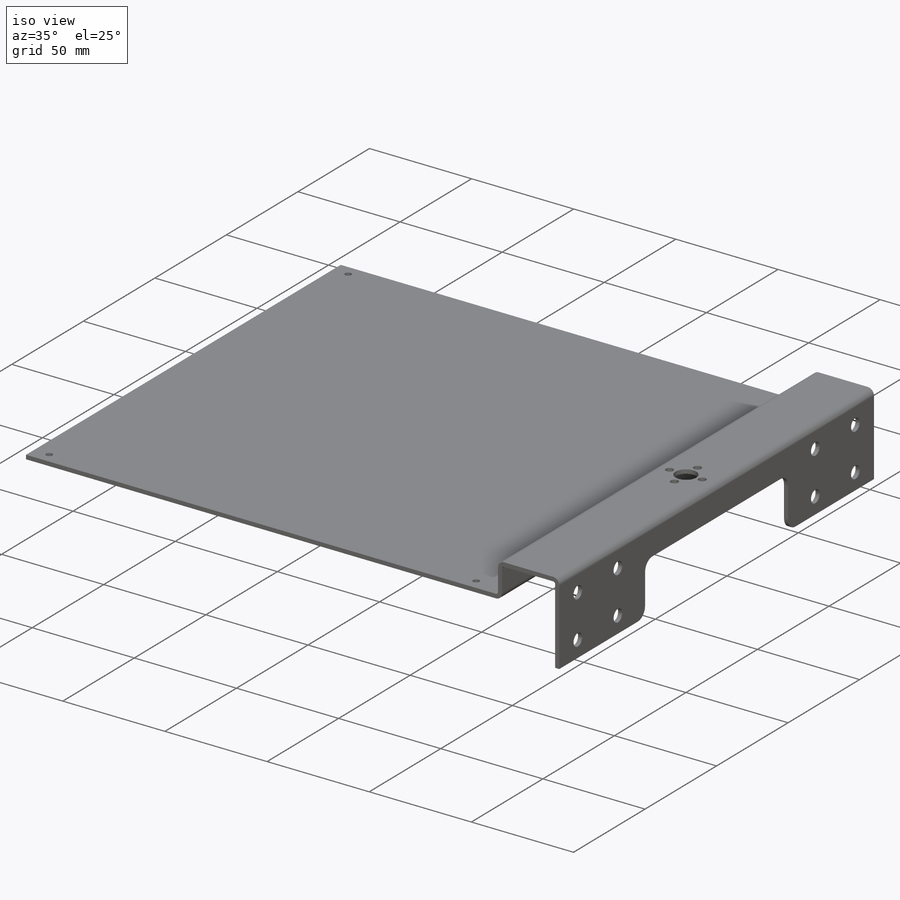
[diagram: iso view]
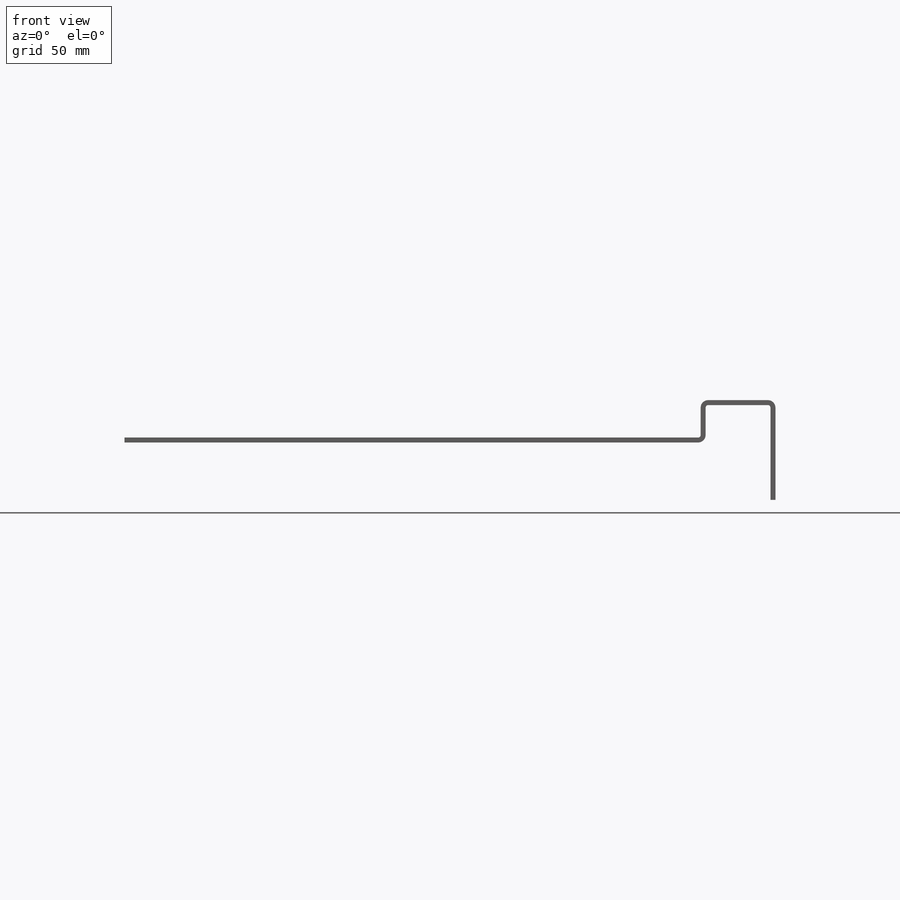
[diagram: front view]
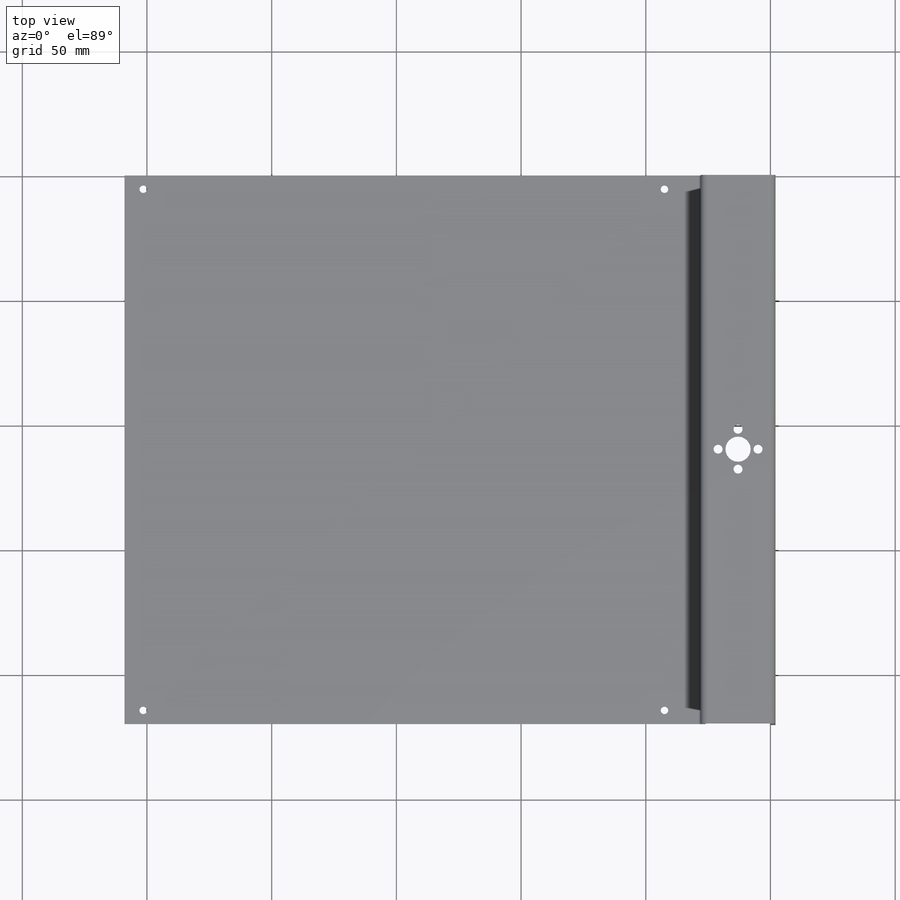
[diagram: top view]
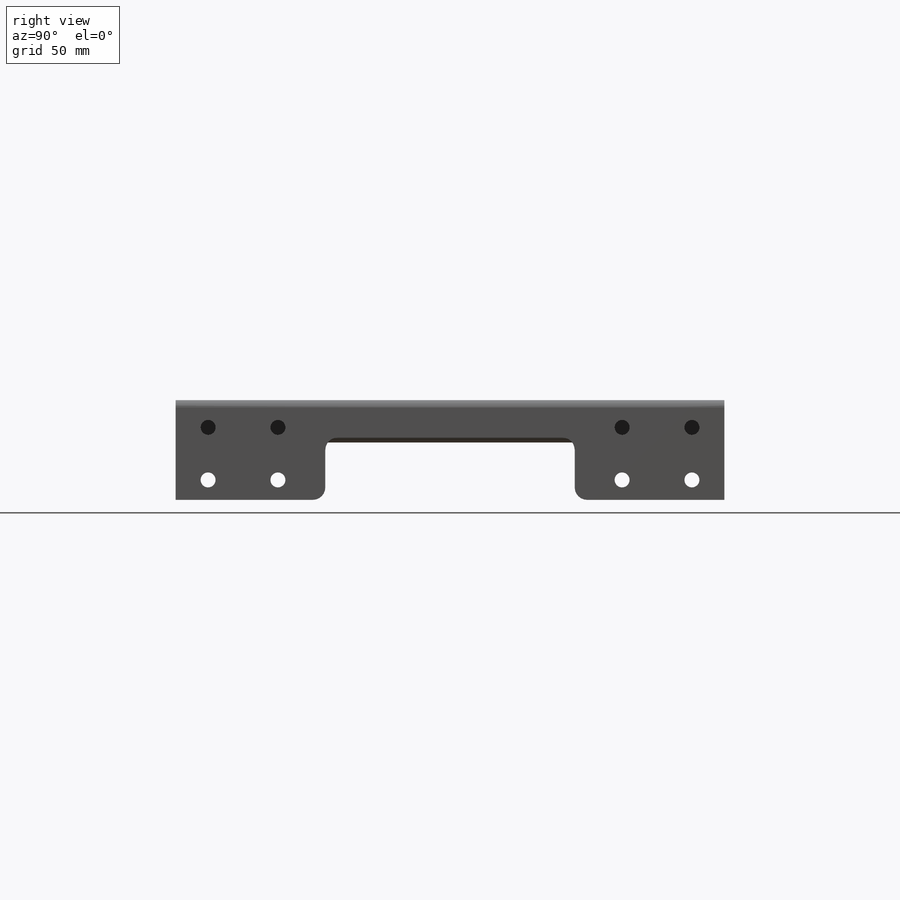
[diagram: right view]
SOLIDWORKS PART (.sldprt)
format: sldprt  version: not decoded by parser v0  size: 817,152 bytes
history: native  units: mm
features: sketch x20, sheet_metal_op x9, fillet x6, cut_extrude x5, plane x3, material x1 + 18 further entries (+9 scaffold rows collapsed; 6 parser-record rows omitted)
feature tree (77):
  scaffold x9  (default folders/planes/origin — collapsed)
  material  "1100-O Rod (SS)"
  plane  "Plan de face"
  plane  "Plan de dessus"
  plane  "Plan de droite"
  sketch  "Sketch1"  dims[c1.D1=233.0mm c1.D2=15.0mm c1.D3=26.0mm c1.D4=38.0mm c2.D1=1.0mm c2.D2=0.5 c2.D3=0.0mm c2.D6=500.0mm]
  sheet_metal_op  "Base-Flange1"
  sheet_metal_op  "BaseBend2"
  sheet_metal_op  "BaseBend3"
  sketch  "Sketch6"  dims[D1=3.6mm D3=3.6mm D2=8.0mm D4=8.0mm]
  cut_extrude  "Cut-Extrude1"  [1 undecoded]
  sketch  "Sketch7"  dims[D3=3.0mm D1=214.0mm D2=214.0mm D4=2.5mm D5=2.5mm D6=5.0mm]
  cut_extrude  "Cut-Extrude2"  [1 undecoded]
  sketch  "Sketch8"  dims[c1.D1=5.0mm c1.D2=6.0mm c1.D3=6.0mm c2.D1=21.0mm c2.D4=14.0mm c2.D5=8.0mm c2.D6=13.0mm]
  cut_extrude  "Cut-Extrude3"  [1 undecoded]
  sketch  "Sketch10"  dims[D1=50.0mm D2=25.0mm]
  cut_extrude  "Cut-Extrude8"  Depth=2mm
  fillet  "Fillet1"  Radius=5mm
  sketch  "Sketch11"  dims[D1=10.1mm]
  cut_extrude  "Cut-Extrude9"  [1 undecoded]
  sketch  "Bend-Lines1"
  sketch  "Bounding-Box1"
  sheet_metal_op  "Sheet-Metal(1)"
  "Flat-Pattern(1)"
  sketch  "Bend-Lines2"
  sketch  "Bounding-Box2"
  parser-record x6  (decoder bookkeeping rows leaked as tree rows — omitted from the tree; the rows remain in map.json)
  "Flatten-<BaseBend2>1"
  "Flatten-<BaseBend3>1"
  fillet  "Sheet-Metal(2)"  Radius=1mm
  sheet_metal_op  "Flat-Pattern(1)"
  sketch  "Bend-Lines2"
  sketch  "Bounding-Box2"
  "Flatten-<BaseBend1>1"
  "Flatten-<BaseBend2>1"
  "Flatten-<BaseBend3>1"
  fillet  "Sheet-Metal(3)"  Radius=1mm
  sheet_metal_op  "Flat-Pattern(1)"
  sketch  "Bend-Lines2"
  sketch  "Bounding-Box2"
  "Flatten-<BaseBend1>1"
  "Flatten-<BaseBend2>1"
  "Flatten-<BaseBend3>1"
  fillet  "Sheet-Metal(4)"  Radius=1mm
  sheet_metal_op  "Flat-Pattern(1)"
  sketch  "Bend-Lines2"
  sketch  "Bounding-Box2"
  "Flatten-<BaseBend1>1"
  "Flatten-<BaseBend2>1"
  "Flatten-<BaseBend3>1"
  fillet  "Sheet-Metal(5)"  Radius=1mm
  sheet_metal_op  "Flat-Pattern(1)"
  sketch  "Bend-Lines2"
  sketch  "Bounding-Box2"
  "Flatten-<BaseBend1>1"
  "Flatten-<BaseBend2>1"
  "Flatten-<BaseBend3>1"
  fillet  "Sheet-Metal(6)"  Radius=1mm
  sheet_metal_op  "Flat-Pattern(1)"
  sketch  "Bend-Lines2"
  sketch  "Bounding-Box2"
  "Flatten-<BaseBend1>1"
  "Flatten-<BaseBend2>1"
  "Flatten-<BaseBend3>1"
decode coverage: 13 of 40 modeling features carry decoded parameters; 18 rows unclassified (native names shown)
note: 4 parameter values undecoded
summary: no parameter record found for 4 features
note: suppression state not decoded; provenance and decode notes live in map.json
